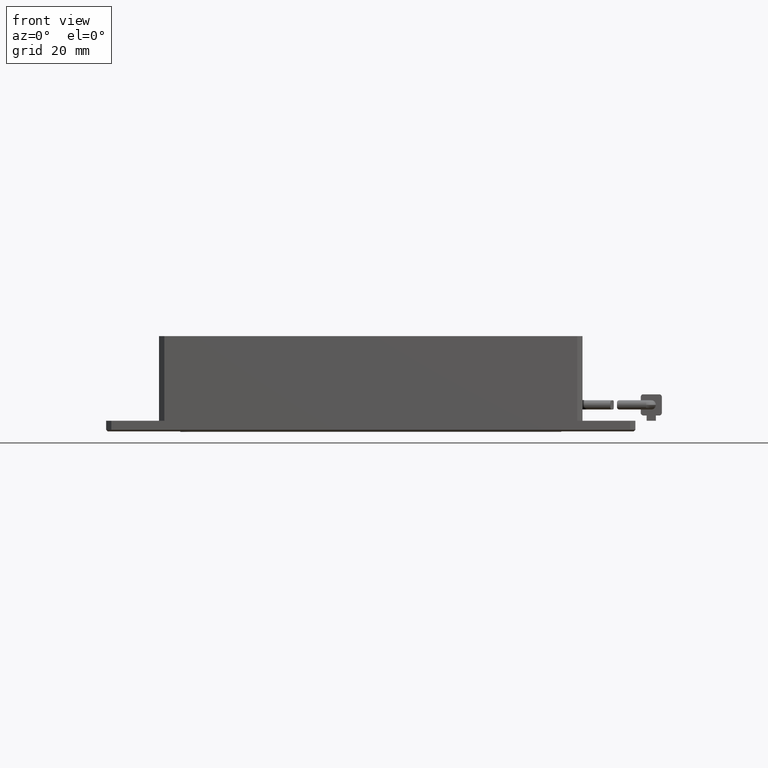
[diagram: clean part render]
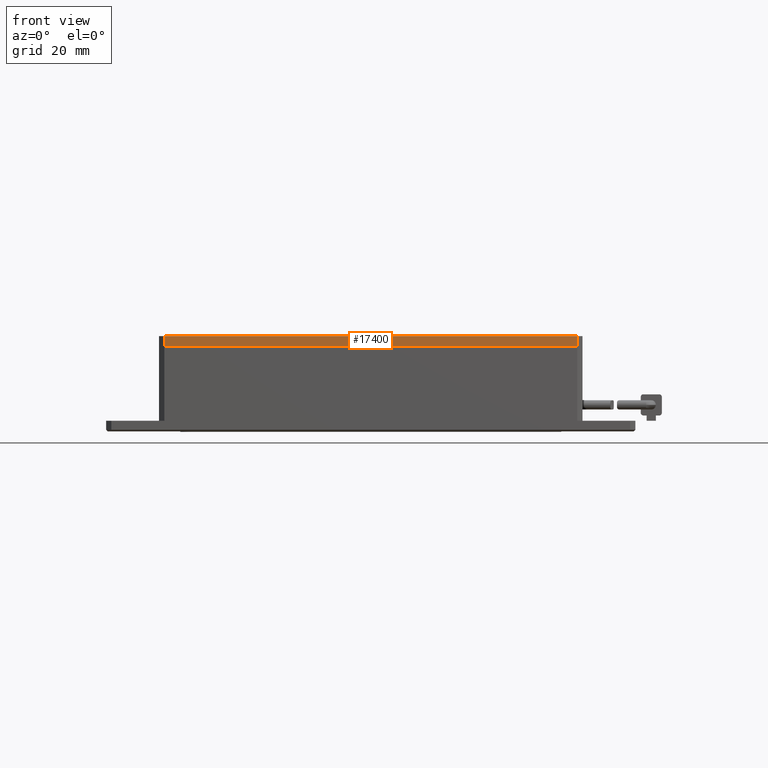
[diagram: same view with one face highlighted and labeled with its STEP entity id]
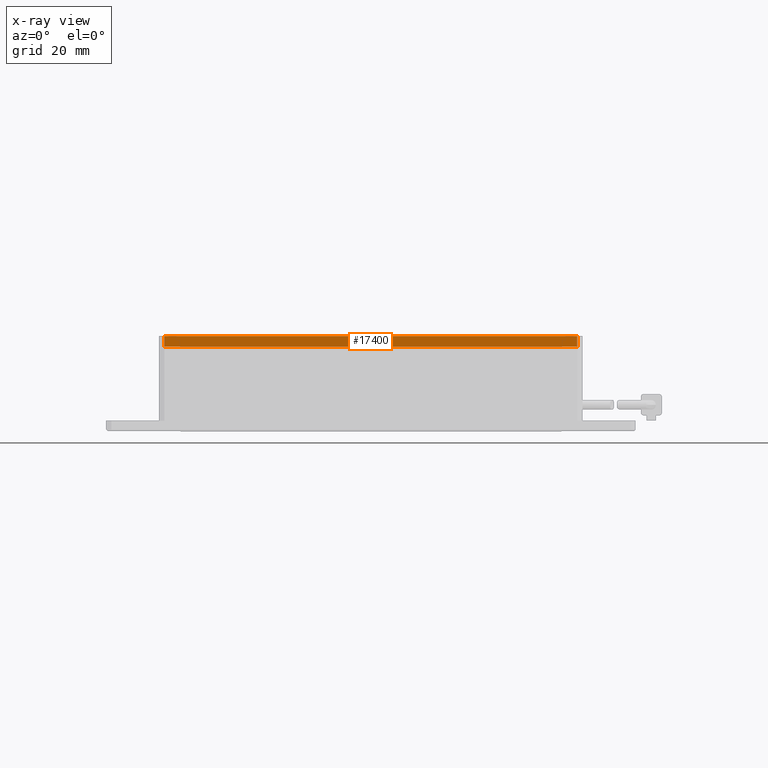
[diagram: x-ray of the same camera — body ghosted, the highlighted face saturated]
A machine part, front view. The second image highlights one B-rep face of the part: STEP entity #17400.
The next image is the same camera in x-ray: the body ghosted, the highlighted face saturated — about 0% of this face is hidden behind the body in this view.
In plain terms, the highlighted planar face has unit normal (-0, 1, 0).
Its self-contained STEP definition (entity closure, byte-faithful):
#707 = VECTOR ( 'NONE', #7234, 1000.000000000000000 ) ;
#1053 = VERTEX_POINT ( 'NONE', #8427 ) ;
#3620 = CARTESIAN_POINT ( 'NONE',  ( -21.94768995799933400, -48.20007636502480600, 13.99999999999545600 ) ) ;
#3646 = ORIENTED_EDGE ( 'NONE', *, *, #4698, .F. ) ;
#3718 = CARTESIAN_POINT ( 'NONE',  ( 57.05231004200068400, -48.20007636502477800, 13.99999999999545600 ) ) ;
#3861 = AXIS2_PLACEMENT_3D ( 'NONE', #3718, #13403, #5115 ) ;
#4319 = LINE ( 'NONE', #15431, #707 ) ;
#4364 = ORIENTED_EDGE ( 'NONE', *, *, #9838, .F. ) ;
#4384 = VERTEX_POINT ( 'NONE', #10265 ) ;
#4698 = EDGE_CURVE ( 'NONE', #1053, #17309, #6813, .T. ) ;
#5115 = DIRECTION ( 'NONE',  ( 1.000000000000000000, 3.885780586188043000E-016, 0.0000000000000000000 ) ) ;
#6463 = PLANE ( 'NONE',  #3861 ) ;
#6813 = LINE ( 'NONE', #16524, #10496 ) ;
#7234 = DIRECTION ( 'NONE',  ( 0.0000000000000000000, 0.0000000000000000000, -1.000000000000000000 ) ) ;
#8178 = CARTESIAN_POINT ( 'NONE',  ( 57.05231004200068400, -48.20007636502477800, 13.99999999999545600 ) ) ;
#8427 = CARTESIAN_POINT ( 'NONE',  ( -21.94768995799933400, -48.20007636502470700, 15.99999999999545600 ) ) ;
#8687 = VERTEX_POINT ( 'NONE', #9840 ) ;
#8767 = LINE ( 'NONE', #8178, #16078 ) ;
#9838 = EDGE_CURVE ( 'NONE', #17309, #4384, #4319, .T. ) ;
#9840 = CARTESIAN_POINT ( 'NONE',  ( -21.94768995799933400, -48.20007636502470700, 13.99999999999545600 ) ) ;
#10265 = CARTESIAN_POINT ( 'NONE',  ( 56.05231004200069800, -48.20007636502475600, 13.99999999999545600 ) ) ;
#10496 = VECTOR ( 'NONE', #15145, 1000.000000000000000 ) ;
#10607 = ORIENTED_EDGE ( 'NONE', *, *, #10670, .F. ) ;
#10670 = EDGE_CURVE ( 'NONE', #4384, #8687, #8767, .T. ) ;
#11890 = DIRECTION ( 'NONE',  ( -0.0000000000000000000, -0.0000000000000000000, 1.000000000000000000 ) ) ;
#12953 = EDGE_LOOP ( 'NONE', ( #16862, #10607, #4364, #3646 ) ) ;
#13403 = DIRECTION ( 'NONE',  ( -3.885780586188043000E-016, 1.000000000000000000, 0.0000000000000000000 ) ) ;
#13580 = EDGE_CURVE ( 'NONE', #8687, #1053, #14698, .T. ) ;
#14253 = VECTOR ( 'NONE', #11890, 1000.000000000000000 ) ;
#14464 = CARTESIAN_POINT ( 'NONE',  ( 56.05231004200069100, -48.20007636502475600, 15.99999999999545600 ) ) ;
#14698 = LINE ( 'NONE', #3620, #14253 ) ;
#15145 = DIRECTION ( 'NONE',  ( 1.000000000000000000, -4.440892098500626200E-016, 0.0000000000000000000 ) ) ;
#15431 = CARTESIAN_POINT ( 'NONE',  ( 56.05231004200066300, -48.20007636502477800, 13.99999999999545600 ) ) ;
#16078 = VECTOR ( 'NONE', #17792, 1000.000000000000000 ) ;
#16524 = CARTESIAN_POINT ( 'NONE',  ( 57.05231004200061300, -48.20007636502470700, 15.99999999999545600 ) ) ;
#16716 = FACE_OUTER_BOUND ( 'NONE', #12953, .T. ) ;
#16862 = ORIENTED_EDGE ( 'NONE', *, *, #13580, .F. ) ;
#17309 = VERTEX_POINT ( 'NONE', #14464 ) ;
#17400 = ADVANCED_FACE ( 'NONE', ( #16716 ), #6463, .F. ) ;
#17792 = DIRECTION ( 'NONE',  ( -1.000000000000000000, -3.885780586188043000E-016, -0.0000000000000000000 ) ) ;